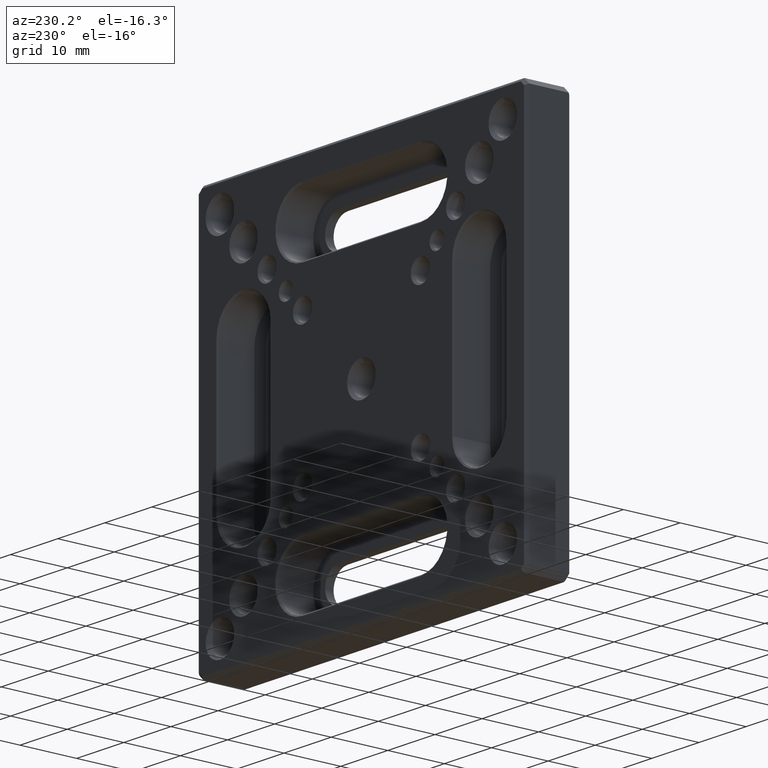
[diagram: clean part render]
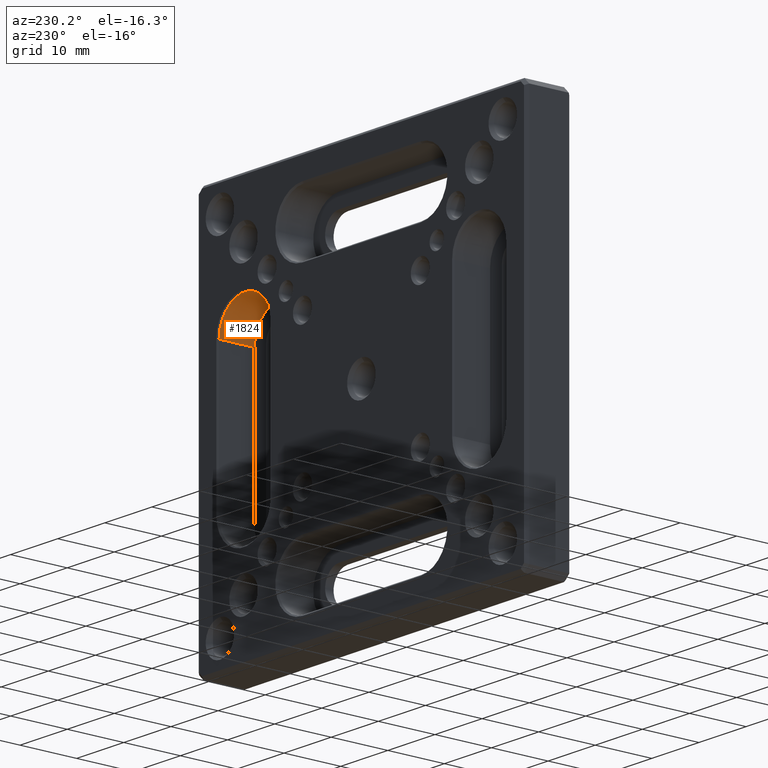
[diagram: same view with one face highlighted and labeled with its STEP entity id]
A machine part, auxiliary view. The second image highlights one B-rep face of the part: STEP entity #1824.
In plain terms, the highlighted cylindrical surface (partial cylindrical patch) has radius 5.5 mm, axis along (-0, 1, -0).
Its self-contained STEP definition (entity closure, byte-faithful):
#2 = DIRECTION ( 'NONE',  ( -0.000000000000000000, 1.000000000000000000, -0.000000000000000000 ) ) ;
#14 = DIRECTION ( 'NONE',  ( 0.000000000000000000, 1.000000000000000000, 0.000000000000000000 ) ) ;
#128 = ORIENTED_EDGE ( 'NONE', *, *, #949, .T. ) ;
#229 = VERTEX_POINT ( 'NONE', #1176 ) ;
#345 = EDGE_CURVE ( 'NONE', #581, #229, #1348, .T. ) ;
#498 = VECTOR ( 'NONE', #2030, 1000.000000000000000 ) ;
#581 = VERTEX_POINT ( 'NONE', #2746 ) ;
#627 = ORIENTED_EDGE ( 'NONE', *, *, #345, .F. ) ;
#642 = CARTESIAN_POINT ( 'NONE',  ( 30.49999999999999289, 7.750000000000012434, 12.49999999999999645 ) ) ;
#937 = ORIENTED_EDGE ( 'NONE', *, *, #2401, .F. ) ;
#949 = EDGE_CURVE ( 'NONE', #3135, #2907, #1865, .T. ) ;
#953 = LINE ( 'NONE', #3382, #498 ) ;
#979 = AXIS2_PLACEMENT_3D ( 'NONE', #3167, #14, #1343 ) ;
#1033 = AXIS2_PLACEMENT_3D ( 'NONE', #2811, #2550, #3052 ) ;
#1176 = CARTESIAN_POINT ( 'NONE',  ( 30.49999999999999289, 1.500000000000000444, 12.49999999999999645 ) ) ;
#1343 = DIRECTION ( 'NONE',  ( 0.000000000000000000, 0.000000000000000000, 1.000000000000000000 ) ) ;
#1348 = CIRCLE ( 'NONE', #1466, 5.499999999999998224 ) ;
#1466 = AXIS2_PLACEMENT_3D ( 'NONE', #2359, #2046, #3153 ) ;
#1534 = LINE ( 'NONE', #2594, #2487 ) ;
#1824 = ADVANCED_FACE ( 'NONE', ( #1995 ), #2272, .F. ) ;
#1865 = CIRCLE ( 'NONE', #979, 5.499999999999998224 ) ;
#1871 = EDGE_LOOP ( 'NONE', ( #3214, #128, #937, #627 ) ) ;
#1995 = FACE_OUTER_BOUND ( 'NONE', #1871, .T. ) ;
#2030 = DIRECTION ( 'NONE',  ( -0.000000000000000000, 1.000000000000000000, -0.000000000000000000 ) ) ;
#2046 = DIRECTION ( 'NONE',  ( 0.000000000000000000, 1.000000000000000000, 0.000000000000000000 ) ) ;
#2272 = CYLINDRICAL_SURFACE ( 'NONE', #1033, 5.499999999999998224 ) ;
#2359 = CARTESIAN_POINT ( 'NONE',  ( 24.99999999999999289, 1.500000000000000444, 12.49999999999999645 ) ) ;
#2401 = EDGE_CURVE ( 'NONE', #229, #2907, #1534, .T. ) ;
#2487 = VECTOR ( 'NONE', #2, 1000.000000000000000 ) ;
#2550 = DIRECTION ( 'NONE',  ( -0.000000000000000000, 1.000000000000000000, -0.000000000000000000 ) ) ;
#2594 = CARTESIAN_POINT ( 'NONE',  ( 30.49999999999999289, 1.500000000000000444, 12.49999999999999645 ) ) ;
#2649 = CARTESIAN_POINT ( 'NONE',  ( 19.49999999999999645, 7.750000000000012434, 12.49999999999999645 ) ) ;
#2746 = CARTESIAN_POINT ( 'NONE',  ( 19.49999999999999645, 1.500000000000000444, 12.49999999999999645 ) ) ;
#2811 = CARTESIAN_POINT ( 'NONE',  ( 24.99999999999999289, 1.500000000000000444, 12.49999999999999645 ) ) ;
#2907 = VERTEX_POINT ( 'NONE', #642 ) ;
#3052 = DIRECTION ( 'NONE',  ( 0.000000000000000000, 0.000000000000000000, 1.000000000000000000 ) ) ;
#3112 = EDGE_CURVE ( 'NONE', #581, #3135, #953, .T. ) ;
#3135 = VERTEX_POINT ( 'NONE', #2649 ) ;
#3153 = DIRECTION ( 'NONE',  ( 0.000000000000000000, 0.000000000000000000, 1.000000000000000000 ) ) ;
#3167 = CARTESIAN_POINT ( 'NONE',  ( 24.99999999999999289, 7.750000000000014211, 12.49999999999999645 ) ) ;
#3214 = ORIENTED_EDGE ( 'NONE', *, *, #3112, .T. ) ;
#3382 = CARTESIAN_POINT ( 'NONE',  ( 19.49999999999999645, 1.500000000000000444, 12.49999999999999645 ) ) ;